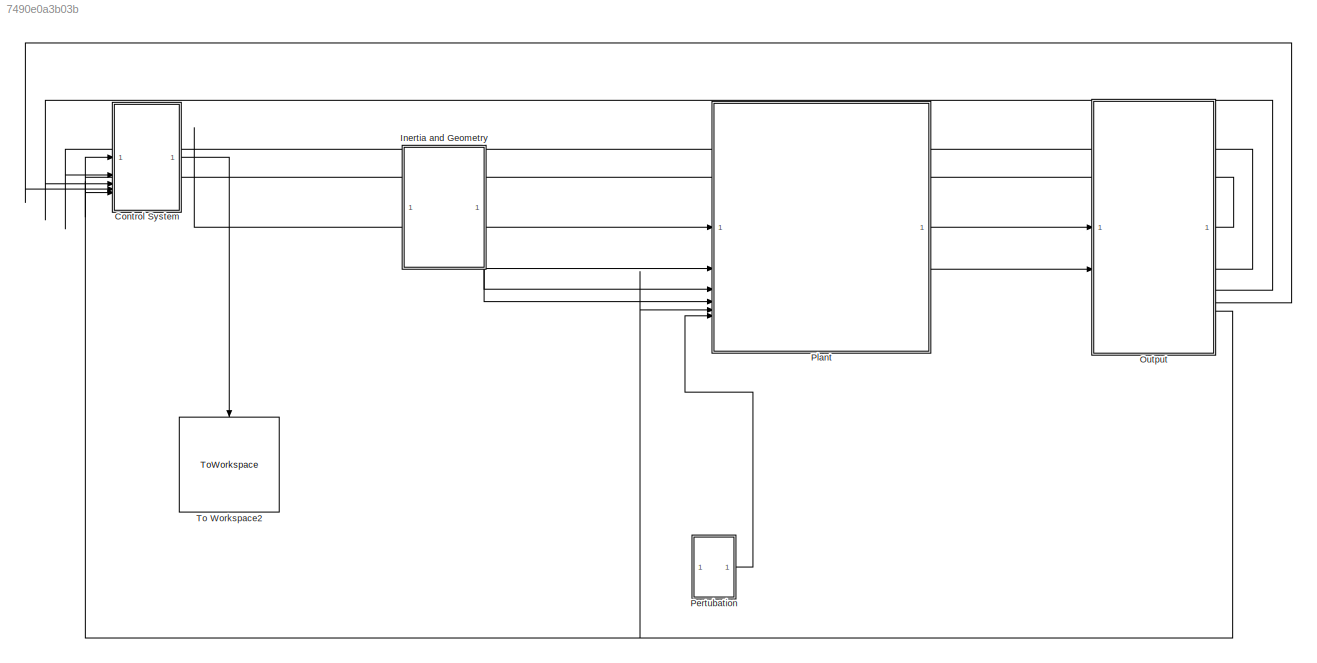
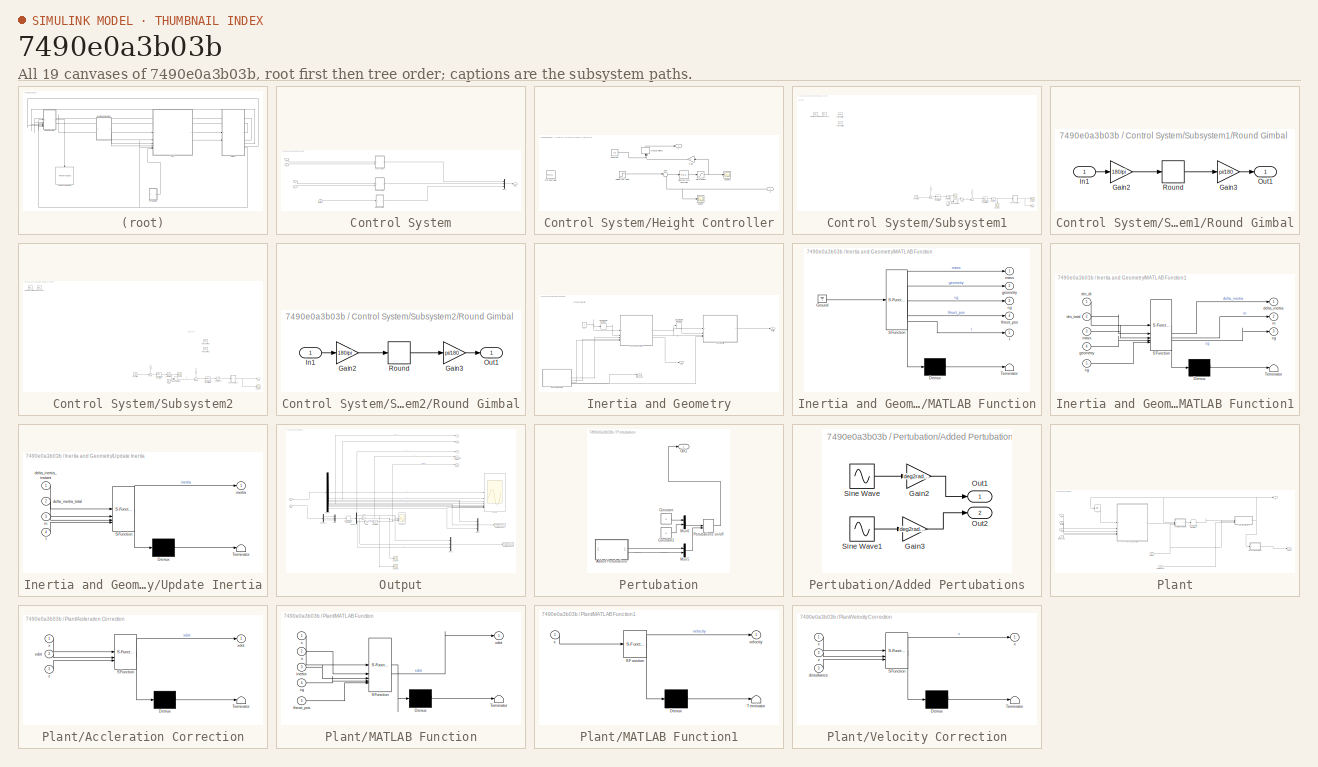
[diagram: thumbnail index - all 19 canvases of the model, root first then tree order]
MODEL slx_7490e0a3b03b
KIND model
CONFIG AbsTol = auto
CONFIG EnableMultiTasking = off
CONFIG FixedStep = auto
CONFIG MaxStep = auto
CONFIG MinStep = auto
CONFIG RelTol = 1e-3
CONFIG SampleTimeConstraint = Unconstrained
CONFIG SolverName = VariableStepAuto
CONFIG StartTime = 0.0
CONFIG StopTime = 300
BLOCK [SubSystem] Control System
BLOCK [Inport] Control System/Height
  NameLocation = top
  Port = 5
BLOCK [SubSystem] Control System/Height Controller
BLOCK [Constant] Control System/Height Controller/Constant
  Value = 110
BLOCK [Reference] Control System/Height Controller/Discrete PID Controller  REF=slpidlib/PID Controller
  LibrarySourceBlock = simulink/Discrete/Discrete PID Controller
  SourceBlock = slpidlib/PID Controller
  SourceType = PID 1dof
BLOCK [Gain] Control System/Height Controller/Gain
  NameLocation = top
BLOCK [ManualSwitch] Control System/Height Controller/Manual Switch
  CurrentSetting = 0
  NameLocation = right
BLOCK [Reference] Control System/Height Controller/PID Controller  REF=slpidlib/PID Controller
  LibrarySourceBlock = simulink/Continuous/PID Controller
  SourceBlock = slpidlib/PID Controller
  SourceType = PID 1dof
BLOCK [Saturate] Control System/Height Controller/Saturation1
  LowerLimit = 0
  UpperLimit = 150
BLOCK [Scope] Control System/Height Controller/Scope
  Floating = off
  NumInputPorts = 1
  ScopeSpecificationString = Simulink.scopes.TimeScopeBlockCfg('CurrentConfiguration', extmgr.ConfigurationSet(extmgr.Configuration('Core','General UI',true),extmgr.Configuration('Core','Source UI',true),extmgr.Configuration('Sources','WiredSimulink',true,'DataLoggingVariableName','ScopeData1'),extmgr.Configuration('Visuals','Time Domain',true,'SerializedDisplays',{struct('MinYLimReal','-2.05408','MaxYLimReal','18.48673','YLa...<+1492ch>
BLOCK [Scope] Control System/Height Controller/Scope2
  Floating = off
  NumInputPorts = 1
  ScopeSpecificationString = Simulink.scopes.TimeScopeBlockCfg('CurrentConfiguration', extmgr.ConfigurationSet(extmgr.Configuration('Core','General UI',true),extmgr.Configuration('Core','Source UI',true),extmgr.Configuration('Sources','WiredSimulink',true,'DataLoggingVariableName','ScopeData1'),extmgr.Configuration('Visuals','Time Domain',true,'SerializedDisplays',{struct('MinYLimReal','-14.37257','MaxYLimReal','129.35311','Y...<+1537ch>
BLOCK [Sum] Control System/Height Controller/Sum
  Inputs = |+-
BLOCK [Outport] Control System/Height Controller/T
BLOCK [Step] Control System/Height Controller/heighit set point
  After = 20
  SampleTime = 0
BLOCK [Inport] Control System/Height Controller/z
BLOCK [Mux] Control System/Mux1
  DisplayOption = bar
  Inputs = 3
BLOCK [Outport] Control System/Out1
BLOCK [SubSystem] Control System/Subsystem1
BLOCK [Outport] Control System/Subsystem1/Alpha
BLOCK [Reference] Control System/Subsystem1/Discrete PID Controller  REF=slpidlib/PID Controller
  LibrarySourceBlock = simulink/Discrete/Discrete PID Controller
  SourceBlock = slpidlib/PID Controller
  SourceType = PID 1dof
BLOCK [Reference] Control System/Subsystem1/Discrete PID Controller1  REF=slpidlib/PID Controller
  LibrarySourceBlock = simulink/Discrete/Discrete PID Controller
  SourceBlock = slpidlib/PID Controller
  SourceType = PID 1dof
BLOCK [Gain] Control System/Subsystem1/Gain
BLOCK [ManualSwitch] Control System/Subsystem1/Manual Switch
BLOCK [Reference] Control System/Subsystem1/PID Controller  REF=slpidlib/PID Controller
  LibrarySourceBlock = simulink/Continuous/PID Controller
  SourceBlock = slpidlib/PID Controller
  SourceType = PID 1dof
BLOCK [Reference] Control System/Subsystem1/PID Controller2  REF=slpidlib/PID Controller
  LibrarySourceBlock = simulink/Continuous/PID Controller
  SourceBlock = slpidlib/PID Controller
  SourceType = PID 1dof
BLOCK [Reference] Control System/Subsystem1/PID Pitch Controller  REF=slpidlib/PID Controller
  LibrarySourceBlock = simulink/Continuous/PID Controller
  SourceBlock = slpidlib/PID Controller
  SourceType = PID 1dof
BLOCK [Reference] Control System/Subsystem1/PID2 Backup 2  REF=slpidlib/PID Controller
  LibrarySourceBlock = simulink/Continuous/PID Controller
  SourceBlock = slpidlib/PID Controller
  SourceType = PID 1dof
BLOCK [Step] Control System/Subsystem1/Pitch
  After = 0.1745
  SampleTime = 0
BLOCK [SubSystem] Control System/Subsystem1/Round Gimbal
  NameLocation = top
BLOCK [Gain] Control System/Subsystem1/Round Gimbal/Gain2
  Gain = 180/pi
  NameLocation = top
BLOCK [Gain] Control System/Subsystem1/Round Gimbal/Gain3
  Gain = pi/180
  NameLocation = top
BLOCK [Inport] Control System/Subsystem1/Round Gimbal/In1
BLOCK [Outport] Control System/Subsystem1/Round Gimbal/Out1
BLOCK [Rounding] Control System/Subsystem1/Round Gimbal/Round
  NameLocation = top
  Operator = round
BLOCK [Saturate] Control System/Subsystem1/Saturation
  LowerLimit = -pi/6
  UpperLimit = pi/6
BLOCK [Saturate] Control System/Subsystem1/Saturation2
  LowerLimit = -pi
  UpperLimit = pi
BLOCK [Scope] Control System/Subsystem1/Scope
  Floating = off
  NumInputPorts = 1
  ScopeSpecificationString = Simulink.scopes.TimeScopeBlockCfg('CurrentConfiguration', extmgr.ConfigurationSet(extmgr.Configuration('Core','General UI',true),extmgr.Configuration('Core','Source UI',true),extmgr.Configuration('Sources','WiredSimulink',true,'DataLoggingVariableName','ScopeData1'),extmgr.Configuration('Visuals','Time Domain',true,'SerializedDisplays',{struct('MinYLimReal','-0.59015','MaxYLimReal','0.0754','YLabe...<+1435ch>
BLOCK [Scope] Control System/Subsystem1/Scope1
  Floating = off
  NameLocation = left
  NumInputPorts = 1
  ScopeSpecificationString = Simulink.scopes.TimeScopeBlockCfg('CurrentConfiguration', extmgr.ConfigurationSet(extmgr.Configuration('Core','General UI',true),extmgr.Configuration('Core','Source UI',true),extmgr.Configuration('Sources','WiredSimulink',true,'DataLoggingVariableName','ScopeData1'),extmgr.Configuration('Visuals','Time Domain',true,'SerializedDisplays',{struct('MinYLimReal','-0.04659','MaxYLimReal','0.18049','YLab...<+1409ch>
BLOCK [Scope] Control System/Subsystem1/Scope7
  Floating = off
  NumInputPorts = 1
  ScopeSpecificationString = Simulink.scopes.TimeScopeBlockCfg('CurrentConfiguration', extmgr.ConfigurationSet(extmgr.Configuration('Core','General UI',true),extmgr.Configuration('Core','Source UI',true),extmgr.Configuration('Sources','WiredSimulink',true,'DataLoggingVariableName','ScopeData1'),extmgr.Configuration('Visuals','Time Domain',true,'SerializedDisplays',{struct('MinYLimReal','-0.04642','MaxYLimReal','0.18027','YLab...<+1538ch>
BLOCK [Sum] Control System/Subsystem1/Sum1
  Inputs = -+|
BLOCK [Sum] Control System/Subsystem1/Sum2
  Inputs = -+|
BLOCK [Inport] Control System/Subsystem1/x
  NameLocation = left
  Port = 2
BLOCK [Step] Control System/Subsystem1/x position
  After = 0
  SampleTime = 0
BLOCK [Inport] Control System/Subsystem1/Θ
  NameLocation = left
BLOCK [SubSystem] Control System/Subsystem2
BLOCK [Outport] Control System/Subsystem2/Beta
BLOCK [Reference] Control System/Subsystem2/Discrete PID Controller  REF=slpidlib/PID Controller
  LibrarySourceBlock = simulink/Discrete/Discrete PID Controller
  SourceBlock = slpidlib/PID Controller
  SourceType = PID 1dof
BLOCK [Reference] Control System/Subsystem2/Discrete PID Controller1  REF=slpidlib/PID Controller
  LibrarySourceBlock = hdlsllib/Discrete/Discrete PID Controller
  SourceBlock = slpidlib/PID Controller
  SourceType = PID 1dof
BLOCK [ManualSwitch] Control System/Subsystem2/Manual Switch
BLOCK [Reference] Control System/Subsystem2/PID Controller1  REF=slpidlib/PID Controller
  LibrarySourceBlock = simulink/Continuous/PID Controller
  SourceBlock = slpidlib/PID Controller
  SourceType = PID 1dof
BLOCK [Reference] Control System/Subsystem2/PID Controller2  REF=slpidlib/PID Controller
  LibrarySourceBlock = simulink/Continuous/PID Controller
  SourceBlock = slpidlib/PID Controller
  SourceType = PID 1dof
BLOCK [Reference] Control System/Subsystem2/PID Pitch Controller  REF=slpidlib/PID Controller
  LibrarySourceBlock = simulink/Continuous/PID Controller
  SourceBlock = slpidlib/PID Controller
  SourceType = PID 1dof
BLOCK [Reference] Control System/Subsystem2/PID2 Backup 2  REF=slpidlib/PID Controller
  LibrarySourceBlock = simulink/Continuous/PID Controller
  SourceBlock = slpidlib/PID Controller
  SourceType = PID 1dof
BLOCK [SubSystem] Control System/Subsystem2/Round Gimbal
  NameLocation = top
BLOCK [Gain] Control System/Subsystem2/Round Gimbal/Gain2
  Gain = 180/pi
  NameLocation = top
BLOCK [Gain] Control System/Subsystem2/Round Gimbal/Gain3
  Gain = pi/180
  NameLocation = top
BLOCK [Inport] Control System/Subsystem2/Round Gimbal/In1
BLOCK [Outport] Control System/Subsystem2/Round Gimbal/Out1
BLOCK [Rounding] Control System/Subsystem2/Round Gimbal/Round
  NameLocation = top
  Operator = round
BLOCK [Saturate] Control System/Subsystem2/Saturation
  LowerLimit = -pi/6
  UpperLimit = pi/6
BLOCK [Saturate] Control System/Subsystem2/Saturation2
  LowerLimit = -pi
  UpperLimit = pi
BLOCK [Scope] Control System/Subsystem2/Scope
  Floating = off
  NumInputPorts = 1
  ScopeSpecificationString = Simulink.scopes.TimeScopeBlockCfg('CurrentConfiguration', extmgr.ConfigurationSet(extmgr.Configuration('Core','General UI',true),extmgr.Configuration('Core','Source UI',true),extmgr.Configuration('Sources','WiredSimulink',true,'DataLoggingVariableName','ScopeData1'),extmgr.Configuration('Visuals','Time Domain',true,'SerializedDisplays',{struct('MinYLimReal','-0.58906','MaxYLimReal','0.06556','YLab...<+1411ch>
BLOCK [Scope] Control System/Subsystem2/Scope7
  Floating = off
  NumInputPorts = 1
  ScopeSpecificationString = Simulink.scopes.TimeScopeBlockCfg('CurrentConfiguration', extmgr.ConfigurationSet(extmgr.Configuration('Core','General UI',true),extmgr.Configuration('Core','Source UI',true),extmgr.Configuration('Sources','WiredSimulink',true,'DataLoggingVariableName','ScopeData1'),extmgr.Configuration('Visuals','Time Domain',true,'SerializedDisplays',{struct('MinYLimReal','-0.06802','MaxYLimReal','0.22049','YLab...<+1538ch>
BLOCK [Sum] Control System/Subsystem2/Sum1
  Inputs = -+|
BLOCK [Sum] Control System/Subsystem2/Sum2
  Inputs = -+|
BLOCK [Step] Control System/Subsystem2/Yaw
  After = 0.1745
  SampleTime = 0
BLOCK [Inport] Control System/Subsystem2/y
  NameLocation = left
  Port = 2
BLOCK [Step] Control System/Subsystem2/y position
  After = 0
  SampleTime = 0
BLOCK [Inport] Control System/Subsystem2/Φ
  NameLocation = left
BLOCK [Inport] Control System/x
  Port = 3
BLOCK [Inport] Control System/y
  Port = 4
BLOCK [Inport] Control System/Θ
  Port = 2
BLOCK [Inport] Control System/Φ
BLOCK [SubSystem] Inertia and Geometry
BLOCK [DiscreteIntegrator] Inertia and Geometry/Discrete-Time Integrator
  ICPrevOutput = DiscIntNeverNeededParam
  ICPrevScaledInput = DiscIntNeverNeededParam
  InitialConditionSetting = Auto
  SampleTime = -1
BLOCK [DiscreteIntegrator] Inertia and Geometry/Discrete-Time Integrator2
  ICPrevOutput = DiscIntNeverNeededParam
  ICPrevScaledInput = DiscIntNeverNeededParam
  InitialConditionSetting = Auto
  SampleTime = -1
BLOCK [SubSystem] Inertia and Geometry/MATLAB Function
  ErrorFcn = Stateflow.Translate.translate
  PermitHierarchicalResolution = ExplicitOnly
  SFBlockType = MATLAB Function
  TreatAsAtomicUnit = on
BLOCK [Demux] Inertia and Geometry/MATLAB Function/ Demux 
  Outputs = 1
BLOCK [Ground] Inertia and Geometry/MATLAB Function/ Ground 
BLOCK [S-Function] Inertia and Geometry/MATLAB Function/ SFunction 
  EnableBusSupport = on
  FunctionName = sf_sfun
  PortCounts = [1 6]
  SFcnIsStateOwnerBlock = off
  SFunctionDeploymentMode = off
  Tag = Stateflow S-Function 7
BLOCK [Terminator] Inertia and Geometry/MATLAB Function/ Terminator 
BLOCK [Outport] Inertia and Geometry/MATLAB Function/I
  Port = 5
BLOCK [Outport] Inertia and Geometry/MATLAB Function/cg
  Port = 3
BLOCK [Outport] Inertia and Geometry/MATLAB Function/geometry
  Port = 2
BLOCK [Outport] Inertia and Geometry/MATLAB Function/mass
BLOCK [Outport] Inertia and Geometry/MATLAB Function/thrust_pos
  Port = 4
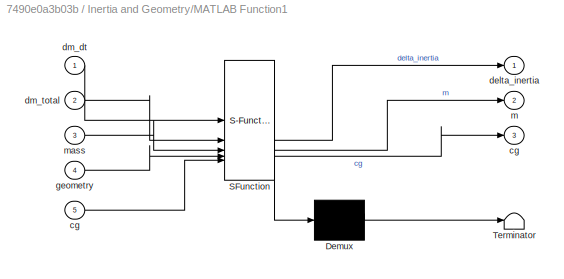
BLOCK [SubSystem] Inertia and Geometry/MATLAB Function1
  ErrorFcn = Stateflow.Translate.translate
  PermitHierarchicalResolution = ExplicitOnly
  SFBlockType = MATLAB Function
  TreatAsAtomicUnit = on
BLOCK [Demux] Inertia and Geometry/MATLAB Function1/ Demux 
  Outputs = 1
BLOCK [S-Function] Inertia and Geometry/MATLAB Function1/ SFunction 
  EnableBusSupport = on
  FunctionName = sf_sfun
  PortCounts = [5 4]
  SFcnIsStateOwnerBlock = off
  SFunctionDeploymentMode = off
  Tag = Stateflow S-Function 3
BLOCK [Terminator] Inertia and Geometry/MATLAB Function1/ Terminator 
BLOCK [Outport] Inertia and Geometry/MATLAB Function1/cg
  Port = 3
BLOCK [Inport] Inertia and Geometry/MATLAB Function1/cg 
  Port = 5
BLOCK [Outport] Inertia and Geometry/MATLAB Function1/delta_inertia
BLOCK [Inport] Inertia and Geometry/MATLAB Function1/dm_dt
BLOCK [Inport] Inertia and Geometry/MATLAB Function1/dm_total
  Port = 2
BLOCK [Inport] Inertia and Geometry/MATLAB Function1/geometry
  Port = 4
BLOCK [Outport] Inertia and Geometry/MATLAB Function1/m
  Port = 2
BLOCK [Inport] Inertia and Geometry/MATLAB Function1/mass
  Port = 3
BLOCK [SubSystem] Inertia and Geometry/Update Inertia
  ErrorFcn = Stateflow.Translate.translate
  PermitHierarchicalResolution = ExplicitOnly
  SFBlockType = MATLAB Function
  TreatAsAtomicUnit = on
BLOCK [Demux] Inertia and Geometry/Update Inertia/ Demux 
  Outputs = 1
BLOCK [S-Function] Inertia and Geometry/Update Inertia/ SFunction 
  EnableBusSupport = on
  FunctionName = sf_sfun
  PortCounts = [4 2]
  SFcnIsStateOwnerBlock = off
  SFunctionDeploymentMode = off
  Tag = Stateflow S-Function 5
BLOCK [Terminator] Inertia and Geometry/Update Inertia/ Terminator 
BLOCK [Inport] Inertia and Geometry/Update Inertia/I
  Port = 4
BLOCK [Inport] Inertia and Geometry/Update Inertia/delta_inertia_instant
BLOCK [Inport] Inertia and Geometry/Update Inertia/delta_inertia_total
  Port = 2
BLOCK [Outport] Inertia and Geometry/Update Inertia/inertia
BLOCK [Inport] Inertia and Geometry/Update Inertia/m
  Port = 3
BLOCK [Outport] Inertia and Geometry/cg
  Port = 2
BLOCK [Constant] Inertia and Geometry/dm
  Value = 0
BLOCK [Outport] Inertia and Geometry/inertia
BLOCK [Outport] Inertia and Geometry/thrust_pos
  Port = 3
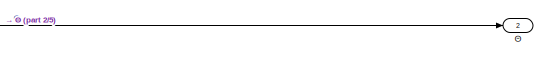
[diagram: Output - part 1/5, top center region]
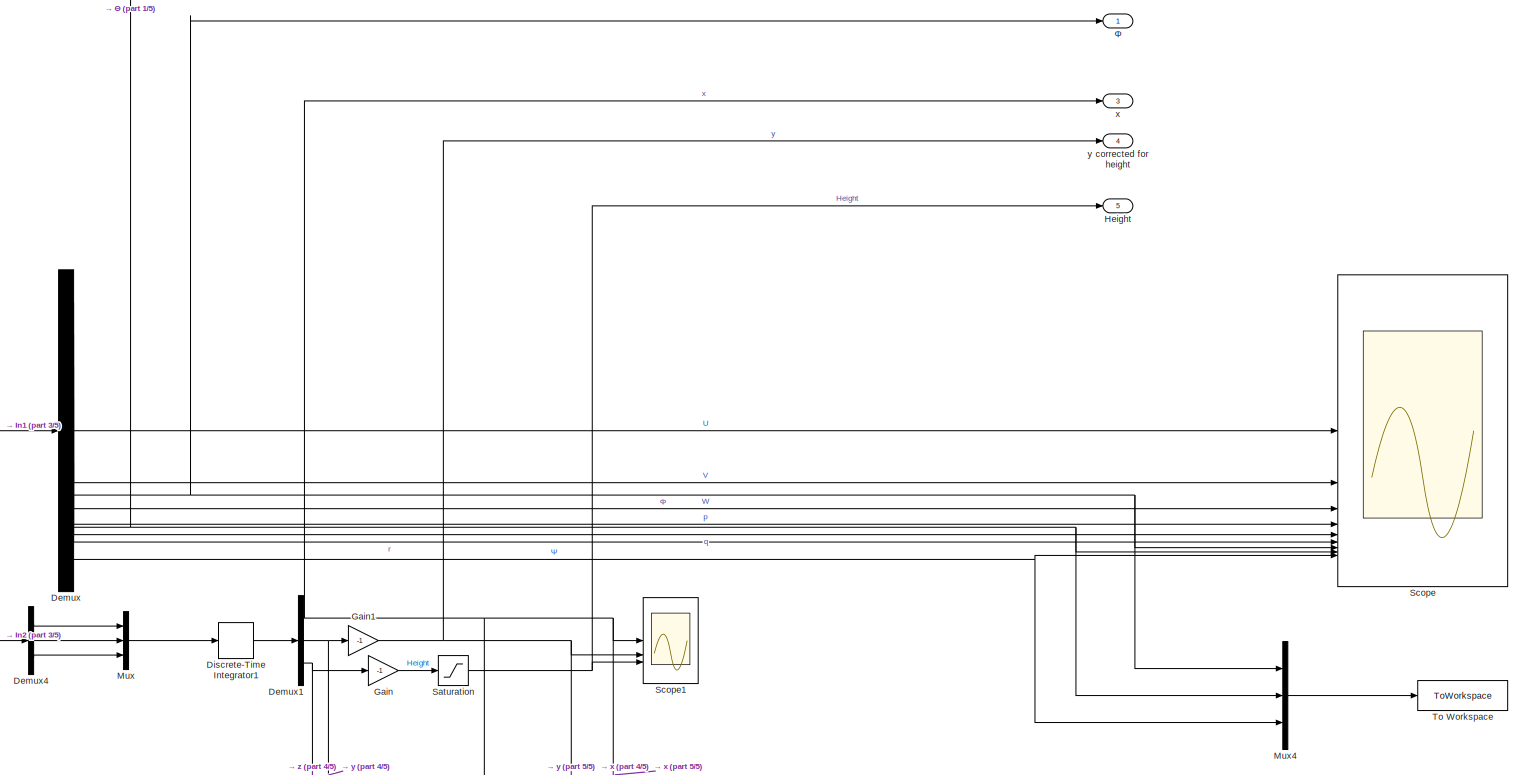
[diagram: Output - part 2/5, full width, middle band]
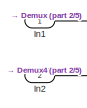
[diagram: Output - part 3/5, middle left region]
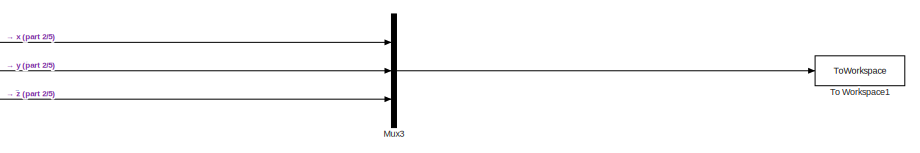
[diagram: Output - part 4/5, bottom right region]
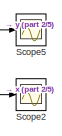
[diagram: Output - part 5/5, bottom center region]
BLOCK [SubSystem] Output
BLOCK [Demux] Output/Demux
  Outputs = 9
BLOCK [Demux] Output/Demux1
  Outputs = 3
BLOCK [Demux] Output/Demux4
  Outputs = 3
BLOCK [DiscreteIntegrator] Output/Discrete-Time Integrator1
  ICPrevOutput = DiscIntNeverNeededParam
  ICPrevScaledInput = DiscIntNeverNeededParam
  InitialConditionSetting = Auto
  SampleTime = -1
BLOCK [Gain] Output/Gain
  Gain = -1
BLOCK [Gain] Output/Gain1
  Gain = -1
BLOCK [Outport] Output/Height
  NameLocation = top
  Port = 5
BLOCK [Inport] Output/In1
BLOCK [Inport] Output/In2
  Port = 2
BLOCK [Mux] Output/Mux
  DisplayOption = bar
  Inputs = 3
BLOCK [Mux] Output/Mux3
  DisplayOption = bar
  Inputs = 3
BLOCK [Mux] Output/Mux4
  DisplayOption = bar
  Inputs = 3
BLOCK [Saturate] Output/Saturation
  LowerLimit = 0
  UpperLimit = 10000
BLOCK [Scope] Output/Scope
  Floating = off
  NumInputPorts = 9
  ScopeSpecificationString = Simulink.scopes.TimeScopeBlockCfg('CurrentConfiguration', extmgr.ConfigurationSet(extmgr.Configuration('Core','General UI',true),extmgr.Configuration('Core','Source UI',true),extmgr.Configuration('Sources','WiredSimulink',true),extmgr.Configuration('Visuals','Time Domain',true,'SerializedDisplays',{struct('MinYLimReal','-1.00000','MaxYLimReal','1.00000','YLabelReal','','MinYLimMag','0.00000','MaxY...<+7774ch>
BLOCK [Scope] Output/Scope1
  Floating = off
  NumInputPorts = 3
  ScopeSpecificationString = Simulink.scopes.TimeScopeBlockCfg('CurrentConfiguration', extmgr.ConfigurationSet(extmgr.Configuration('Core','General UI',true),extmgr.Configuration('Core','Source UI',true),extmgr.Configuration('Sources','WiredSimulink',true,'DataLoggingVariableName','ScopeData1'),extmgr.Configuration('Visuals','Time Domain',true,'SerializedDisplays',{struct('MinYLimReal','-2.05408','MaxYLimReal','18.48673','YLa...<+1551ch>
BLOCK [Scope] Output/Scope2
  Floating = off
  NumInputPorts = 1
  ScopeSpecificationString = Simulink.scopes.TimeScopeBlockCfg('CurrentConfiguration', extmgr.ConfigurationSet(extmgr.Configuration('Core','General UI',true),extmgr.Configuration('Core','Source UI',true),extmgr.Configuration('Sources','WiredSimulink',true,'DataLoggingVariableName','ScopeData2'),extmgr.Configuration('Visuals','Time Domain',true,'SerializedDisplays',{struct('MinYLimReal','-16.07928','MaxYLimReal','11.49116','YL...<+1470ch>
BLOCK [Scope] Output/Scope5
  Floating = off
  NumInputPorts = 1
  ScopeSpecificationString = Simulink.scopes.TimeScopeBlockCfg('CurrentConfiguration', extmgr.ConfigurationSet(extmgr.Configuration('Core','General UI',true),extmgr.Configuration('Core','Source UI',true),extmgr.Configuration('Sources','WiredSimulink',true,'DataLoggingVariableName','ScopeData3'),extmgr.Configuration('Visuals','Time Domain',true,'SerializedDisplays',{struct('MinYLimReal','-17.31939','MaxYLimReal','22.2376','YLa...<+1401ch>
BLOCK [ToWorkspace] Output/To Workspace
  FixptAsFi = on
  MaxDataPoints = inf
  SampleTime = -1
  SaveFormat = Timeseries
  VariableName = euler_angles
BLOCK [ToWorkspace] Output/To Workspace1
  FixptAsFi = on
  MaxDataPoints = inf
  SampleTime = -1
  SaveFormat = Timeseries
  VariableName = position
BLOCK [Outport] Output/x
  Port = 3
BLOCK [Outport] Output/y corrected for height
  Port = 4
BLOCK [Outport] Output/Θ
  Port = 2
BLOCK [Outport] Output/Φ
BLOCK [SubSystem] Pertubation
BLOCK [SubSystem] Pertubation/Added Pertubations
BLOCK [Gain] Pertubation/Added Pertubations/Gain2
  Gain = deg2rad(5)
BLOCK [Gain] Pertubation/Added Pertubations/Gain3
  Gain = deg2rad(5)
BLOCK [Outport] Pertubation/Added Pertubations/Out1
BLOCK [Outport] Pertubation/Added Pertubations/Out2
  Port = 2
BLOCK [Sin] Pertubation/Added Pertubations/Sine Wave
  Frequency = 0.5
  SampleTime = 0
BLOCK [Sin] Pertubation/Added Pertubations/Sine Wave1
  Frequency = 0.5
  SampleTime = 0
BLOCK [Constant] Pertubation/Constant
  Value = 0
BLOCK [Constant] Pertubation/Constant1
  Value = 0
BLOCK [Mux] Pertubation/Mux5
  DisplayOption = bar
  Inputs = 2
BLOCK [Mux] Pertubation/Mux6
  DisplayOption = bar
  Inputs = 2
BLOCK [Outport] Pertubation/Out1
BLOCK [ManualSwitch] Pertubation/Pertubations on//off
  NameLocation = right
BLOCK [SubSystem] Plant
BLOCK [SubSystem] Plant/Accleration Correction
  ErrorFcn = Stateflow.Translate.translate
  PermitHierarchicalResolution = ExplicitOnly
  SFBlockType = MATLAB Function
  TreatAsAtomicUnit = on
BLOCK [Demux] Plant/Accleration Correction/ Demux 
  Outputs = 1
BLOCK [S-Function] Plant/Accleration Correction/ SFunction 
  EnableBusSupport = on
  FunctionName = sf_sfun
  PortCounts = [3 2]
  SFcnIsStateOwnerBlock = off
  SFunctionDeploymentMode = off
  Tag = Stateflow S-Function 1
BLOCK [Terminator] Plant/Accleration Correction/ Terminator 
BLOCK [Inport] Plant/Accleration Correction/x
BLOCK [Outport] Plant/Accleration Correction/xdot
BLOCK [Inport] Plant/Accleration Correction/xdot 
  Port = 2
BLOCK [Inport] Plant/Accleration Correction/z
  Port = 3
BLOCK [DiscreteIntegrator] Plant/Discrete-Time Integrator
  ICPrevOutput = DiscIntNeverNeededParam
  ICPrevScaledInput = DiscIntNeverNeededParam
  InitialConditionSetting = Auto
  SampleTime = -1
BLOCK [Inport] Plant/Height
  Port = 5
BLOCK [InitialCondition] Plant/IC
  Value = [0,0,0,0,0,0,0,0,0]
BLOCK [SubSystem] Plant/MATLAB Function
  ErrorFcn = Stateflow.Translate.translate
  PermitHierarchicalResolution = ExplicitOnly
  SFBlockType = MATLAB Function
  TreatAsAtomicUnit = on
BLOCK [Demux] Plant/MATLAB Function/ Demux 
  Outputs = 1
BLOCK [S-Function] Plant/MATLAB Function/ SFunction 
  EnableBusSupport = on
  FunctionName = sf_sfun
  PortCounts = [5 2]
  SFcnIsStateOwnerBlock = off
  SFunctionDeploymentMode = off
  Tag = Stateflow S-Function 2
BLOCK [Terminator] Plant/MATLAB Function/ Terminator 
BLOCK [Inport] Plant/MATLAB Function/cg
  Port = 4
BLOCK [Inport] Plant/MATLAB Function/inertia
  Port = 3
BLOCK [Inport] Plant/MATLAB Function/thrust_pos
  Port = 5
BLOCK [Inport] Plant/MATLAB Function/u
  Port = 2
BLOCK [Inport] Plant/MATLAB Function/x
BLOCK [Outport] Plant/MATLAB Function/xdot
BLOCK [SubSystem] Plant/MATLAB Function1
  ErrorFcn = Stateflow.Translate.translate
  PermitHierarchicalResolution = ExplicitOnly
  SFBlockType = MATLAB Function
  TreatAsAtomicUnit = on
BLOCK [Demux] Plant/MATLAB Function1/ Demux 
  Outputs = 1
BLOCK [S-Function] Plant/MATLAB Function1/ SFunction 
  EnableBusSupport = on
  FunctionName = sf_sfun
  PortCounts = [1 2]
  SFcnIsStateOwnerBlock = off
  SFunctionDeploymentMode = off
  Tag = Stateflow S-Function 6
BLOCK [Terminator] Plant/MATLAB Function1/ Terminator 
BLOCK [Outport] Plant/MATLAB Function1/velocity
BLOCK [Inport] Plant/MATLAB Function1/x
BLOCK [SubSystem] Plant/Velocity Correction
  ErrorFcn = Stateflow.Translate.translate
  PermitHierarchicalResolution = ExplicitOnly
  SFBlockType = MATLAB Function
  TreatAsAtomicUnit = on
BLOCK [Demux] Plant/Velocity Correction/ Demux 
  Outputs = 1
BLOCK [S-Function] Plant/Velocity Correction/ SFunction 
  EnableBusSupport = on
  FunctionName = sf_sfun
  PortCounts = [3 2]
  SFcnIsStateOwnerBlock = off
  SFunctionDeploymentMode = off
  Tag = Stateflow S-Function 4
BLOCK [Terminator] Plant/Velocity Correction/ Terminator 
BLOCK [Inport] Plant/Velocity Correction/disturbance
  Port = 3
BLOCK [Outport] Plant/Velocity Correction/x
BLOCK [Inport] Plant/Velocity Correction/x 
BLOCK [Inport] Plant/Velocity Correction/z
  Port = 2
BLOCK [Inport] Plant/cg
  Port = 3
BLOCK [Inport] Plant/disturbance
  Port = 6
BLOCK [Inport] Plant/inertia
  Port = 2
BLOCK [Inport] Plant/thrust_pos
  Port = 4
BLOCK [Inport] Plant/u
BLOCK [Outport] Plant/velocity
  Port = 2
BLOCK [Outport] Plant/x
BLOCK [ToWorkspace] To Workspace2
  FixptAsFi = on
  MaxDataPoints = inf
  NameLocation = left
  SampleTime = -1
  SaveFormat = Timeseries
  VariableName = thrust
ANNOTATION Control System/Subsystem1: Bakups
ANNOTATION Control System/Subsystem2: Backups
ANNOTATION Inertia and Geometry: Compute delta inertia
LINE Control System/Height Controller/Constant:1 -> Control System/Height Controller/Manual Switch:1
LINE Control System/Height Controller/Discrete PID Controller:1 -> Control System/Height Controller/Saturation1:1
LINE Control System/Height Controller/Gain:1 -> Control System/Height Controller/Manual Switch:2
LINE Control System/Height Controller/Manual Switch:1 -> Control System/Height Controller/T:1
NET Control System/Height Controller/Saturation1:1 -> Control System/Height Controller/Gain:1, Control System/Height Controller/Scope2:1
LINE Control System/Height Controller/Sum:1 -> Control System/Height Controller/Discrete PID Controller:1
LINE Control System/Height Controller/heighit set point:1 -> Control System/Height Controller/Sum:1
NET Control System/Height Controller/z:1 -> Control System/Height Controller/Scope:1, Control System/Height Controller/Sum:2
LINE Control System/Height Controller:1 -> Control System/Mux1:3
LINE Control System/Height:1 -> Control System/Height Controller:1
LINE Control System/Mux1:1 -> Control System/Out1:1
LINE Control System/Subsystem1/Discrete PID Controller1:1 -> Control System/Subsystem1/Saturation2:1
LINE Control System/Subsystem1/Discrete PID Controller:1 -> Control System/Subsystem1/Saturation:1
LINE Control System/Subsystem1/Gain:1 -> Control System/Subsystem1/Sum2:2
LINE Control System/Subsystem1/Manual Switch:1 -> Control System/Subsystem1/Gain:1
LINE Control System/Subsystem1/Pitch:1 -> Control System/Subsystem1/Manual Switch:2
LINE Control System/Subsystem1/Round Gimbal/Gain2:1 -> Control System/Subsystem1/Round Gimbal/Round:1
LINE Control System/Subsystem1/Round Gimbal/Gain3:1 -> Control System/Subsystem1/Round Gimbal/Out1:1
LINE Control System/Subsystem1/Round Gimbal/In1:1 -> Control System/Subsystem1/Round Gimbal/Gain2:1
LINE Control System/Subsystem1/Round Gimbal/Round:1 -> Control System/Subsystem1/Round Gimbal/Gain3:1
NET Control System/Subsystem1/Round Gimbal:1 -> Control System/Subsystem1/Alpha:1, Control System/Subsystem1/Scope7:1
NET Control System/Subsystem1/Saturation2:1 -> Control System/Subsystem1/Round Gimbal:1, Control System/Subsystem1/Scope1:1
NET Control System/Subsystem1/Saturation:1 -> Control System/Subsystem1/Manual Switch:1, Control System/Subsystem1/Scope:1
LINE Control System/Subsystem1/Sum1:1 -> Control System/Subsystem1/Discrete PID Controller:1
LINE Control System/Subsystem1/Sum2:1 -> Control System/Subsystem1/Discrete PID Controller1:1
LINE Control System/Subsystem1/x position:1 -> Control System/Subsystem1/Sum1:2
LINE Control System/Subsystem1/x:1 -> Control System/Subsystem1/Sum1:1
LINE Control System/Subsystem1/Θ:1 -> Control System/Subsystem1/Sum2:1
LINE Control System/Subsystem1:1 -> Control System/Mux1:1
LINE Control System/Subsystem2/Discrete PID Controller1:1 -> Control System/Subsystem2/Saturation2:1
LINE Control System/Subsystem2/Discrete PID Controller:1 -> Control System/Subsystem2/Saturation:1
LINE Control System/Subsystem2/Manual Switch:1 -> Control System/Subsystem2/Sum2:2
LINE Control System/Subsystem2/Round Gimbal/Gain2:1 -> Control System/Subsystem2/Round Gimbal/Round:1
LINE Control System/Subsystem2/Round Gimbal/Gain3:1 -> Control System/Subsystem2/Round Gimbal/Out1:1
LINE Control System/Subsystem2/Round Gimbal/In1:1 -> Control System/Subsystem2/Round Gimbal/Gain2:1
LINE Control System/Subsystem2/Round Gimbal/Round:1 -> Control System/Subsystem2/Round Gimbal/Gain3:1
NET Control System/Subsystem2/Round Gimbal:1 -> Control System/Subsystem2/Beta:1, Control System/Subsystem2/Scope7:1
LINE Control System/Subsystem2/Saturation2:1 -> Control System/Subsystem2/Round Gimbal:1
NET Control System/Subsystem2/Saturation:1 -> Control System/Subsystem2/Manual Switch:1, Control System/Subsystem2/Scope:1
LINE Control System/Subsystem2/Sum1:1 -> Control System/Subsystem2/Discrete PID Controller:1
LINE Control System/Subsystem2/Sum2:1 -> Control System/Subsystem2/Discrete PID Controller1:1
LINE Control System/Subsystem2/Yaw:1 -> Control System/Subsystem2/Manual Switch:2
LINE Control System/Subsystem2/y position:1 -> Control System/Subsystem2/Sum1:2
LINE Control System/Subsystem2/y:1 -> Control System/Subsystem2/Sum1:1
LINE Control System/Subsystem2/Φ:1 -> Control System/Subsystem2/Sum2:1
LINE Control System/Subsystem2:1 -> Control System/Mux1:2
LINE Control System/x:1 -> Control System/Subsystem1:2
LINE Control System/y:1 -> Control System/Subsystem2:2
LINE Control System/Θ:1 -> Control System/Subsystem1:1
LINE Control System/Φ:1 -> Control System/Subsystem2:1
NET Control System:1 -> Plant:1, To Workspace2:1
LINE Inertia and Geometry/Discrete-Time Integrator2:1 -> Inertia and Geometry/Update Inertia:2
LINE Inertia and Geometry/Discrete-Time Integrator:1 -> Inertia and Geometry/MATLAB Function1:2
NET Inertia and Geometry/MATLAB Function1:1 -> Inertia and Geometry/Discrete-Time Integrator2:1, Inertia and Geometry/Update Inertia:1
LINE Inertia and Geometry/MATLAB Function1:2 -> Inertia and Geometry/Update Inertia:3
LINE Inertia and Geometry/MATLAB Function1:3 -> Inertia and Geometry/cg:1
LINE Inertia and Geometry/MATLAB Function:1 -> Inertia and Geometry/MATLAB Function1:3
LINE Inertia and Geometry/MATLAB Function:2 -> Inertia and Geometry/MATLAB Function1:4
LINE Inertia and Geometry/MATLAB Function:3 -> Inertia and Geometry/MATLAB Function1:5
LINE Inertia and Geometry/MATLAB Function:4 -> Inertia and Geometry/thrust_pos:1
LINE Inertia and Geometry/MATLAB Function:5 -> Inertia and Geometry/Update Inertia:4
LINE Inertia and Geometry/Update Inertia:1 -> Inertia and Geometry/inertia:1
NET Inertia and Geometry/dm:1 -> Inertia and Geometry/Discrete-Time Integrator:1, Inertia and Geometry/MATLAB Function1:1
LINE Inertia and Geometry:1 -> Plant:2
LINE Inertia and Geometry:2 -> Plant:3
LINE Inertia and Geometry:3 -> Plant:4
NET Output/Demux1:1 -> Output/Mux3:1, Output/Scope1:1, Output/Scope2:1, Output/x:1
NET Output/Demux1:2 -> Output/Gain1:1, Output/Mux3:2
NET Output/Demux1:3 -> Output/Gain:1, Output/Mux3:3
LINE Output/Demux4:1 -> Output/Mux:1
LINE Output/Demux4:2 -> Output/Mux:2
LINE Output/Demux4:3 -> Output/Mux:3
LINE Output/Demux:1 -> Output/Scope:1
LINE Output/Demux:2 -> Output/Scope:2
LINE Output/Demux:3 -> Output/Scope:3
LINE Output/Demux:4 -> Output/Scope:4
LINE Output/Demux:5 -> Output/Scope:5
LINE Output/Demux:6 -> Output/Scope:6
NET Output/Demux:7 -> Output/Mux4:1, Output/Scope:7, Output/Φ:1
NET Output/Demux:8 -> Output/Mux4:2, Output/Scope:8, Output/Θ:1
NET Output/Demux:9 -> Output/Mux4:3, Output/Scope:9
LINE Output/Discrete-Time Integrator1:1 -> Output/Demux1:1
NET Output/Gain1:1 -> Output/Scope1:2, Output/Scope5:1, Output/y corrected for height:1
LINE Output/Gain:1 -> Output/Saturation:1
LINE Output/In1:1 -> Output/Demux:1
LINE Output/In2:1 -> Output/Demux4:1
LINE Output/Mux3:1 -> Output/To Workspace1:1
LINE Output/Mux4:1 -> Output/To Workspace:1
LINE Output/Mux:1 -> Output/Discrete-Time Integrator1:1
NET Output/Saturation:1 -> Output/Height:1, Output/Scope1:3
LINE Output:1 -> Control System:1
LINE Output:2 -> Control System:2
LINE Output:3 -> Control System:3
LINE Output:4 -> Control System:4
NET Output:5 -> Control System:5, Plant:5
LINE Pertubation/Added Pertubations/Gain2:1 -> Pertubation/Added Pertubations/Out1:1
LINE Pertubation/Added Pertubations/Gain3:1 -> Pertubation/Added Pertubations/Out2:1
LINE Pertubation/Added Pertubations/Sine Wave1:1 -> Pertubation/Added Pertubations/Gain3:1
LINE Pertubation/Added Pertubations/Sine Wave:1 -> Pertubation/Added Pertubations/Gain2:1
LINE Pertubation/Added Pertubations:1 -> Pertubation/Mux5:1
LINE Pertubation/Added Pertubations:2 -> Pertubation/Mux5:2
LINE Pertubation/Constant1:1 -> Pertubation/Mux6:2
LINE Pertubation/Constant:1 -> Pertubation/Mux6:1
LINE Pertubation/Mux5:1 -> Pertubation/Pertubations on//off:2
LINE Pertubation/Mux6:1 -> Pertubation/Pertubations on//off:1
LINE Pertubation/Pertubations on//off:1 -> Pertubation/Out1:1
LINE Pertubation:1 -> Plant:6
LINE Plant/Accleration Correction:1 -> Plant/Discrete-Time Integrator:1
LINE Plant/Discrete-Time Integrator:1 -> Plant/Velocity Correction:1
NET Plant/Height:1 -> Plant/Accleration Correction:3, Plant/Velocity Correction:2
LINE Plant/IC:1 -> Plant/MATLAB Function:1
LINE Plant/MATLAB Function1:1 -> Plant/velocity:1
LINE Plant/MATLAB Function:1 -> Plant/Accleration Correction:2
NET Plant/Velocity Correction:1 -> Plant/Accleration Correction:1, Plant/IC:1, Plant/MATLAB Function1:1, Plant/x:1
LINE Plant/cg:1 -> Plant/MATLAB Function:4
LINE Plant/disturbance:1 -> Plant/Velocity Correction:3
LINE Plant/inertia:1 -> Plant/MATLAB Function:3
LINE Plant/thrust_pos:1 -> Plant/MATLAB Function:5
LINE Plant/u:1 -> Plant/MATLAB Function:2
LINE Plant:1 -> Output:1
LINE Plant:2 -> Output:2
note: NET lines group one-source signal fan-out (src -> all destinations, sorted); 1:1 wires keep LINE
CHART Plant/Accleration Correction states=1 transitions=1
  STATE_LABEL 'eML_blk_kernel()'
  STATE_LABEL 'SCRIPT:\nfunction xdot = fcn(x,xdot, z)\n\nphi=x(7);\ntheta=x(8);\npsi=x(9);\nT_etob=[cos(theta)*cos(psi),cos(theta)*sin(psi),-sin(theta);\n    sin(theta)*sin(phi)*cos(phi)-sin(psi)*cos(phi),sin(psi)*sin(theta)*sin(phi)+cos(psi)*cos(phi), sin(phi)*cos(theta);\n    sin(theta)*cos(phi)*cos(psi)+sin(psi)*sin(phi), sin(phi)*sin(theta)*cos(phi)-cos(psi)*sin(theta), cos(phi)*cos(theta)];\nzddot=xdot(end);\n\nif z ...<+140ch>'
CHART Plant/MATLAB Function states=1 transitions=1
  STATE_LABEL 'eML_blk_kernel()'
  STATE_LABEL 'SCRIPT:\nfunction xdot   = fcn(x, u,inertia,cg, thrust_pos)\n%{\nTakes in thrust, angles of thrust, x and outputs xdot\nBody axis is defined as z being the in the direction of gravity when pitch\nis zero\nmass-kg\nI - moment of inertia - kg m^2\ncg - centre of gravity - m\nthrust position - m\n\nx: \nU - body axis x velocity - m/s\nV - body axis y velocity - m/s\nW - body axis z velocity - m/s\np - body axis rol...<+2166ch>'
CHART Inertia and Geometry/MATLAB Function1 states=1 transitions=1
  STATE_LABEL 'eML_blk_kernel()'
  STATE_LABEL 'SCRIPT:\nfunction  [delta_inertia,m,cg] = fcn(dm_dt,dm_total,mass,geometry,cg)\n\n\n\nrho=800;\nm_empty=mass(1);\nm_fuel=mass(2);\nR_tank=geometry(1);\nA_tank=pi*R_tank^2;\n\n\nC=0; %The constant from empty cg to the bottom of the fuel tank\nD=0; %cg_empty * m_empty,set to 0 if axis begins at empty cg\n\ndL_fuel=dm_total/rho*A_tank; \n\nL_fuel=geometry(2)-dL_fuel;\n\n\nm_fuel=m_fuel+dm_total;\nm=m_empty+m_fuel;\n\ncg_fu...<+760ch>'
CHART Plant/Velocity Correction states=1 transitions=1
  STATE_LABEL 'eML_blk_kernel()'
  STATE_LABEL 'SCRIPT:\nfunction x   = fcn(x, z,disturbance)\n\nphi=x(7);\ntheta=x(8);\npsi=x(9);\nT_etob=[cos(theta)*cos(psi),cos(theta)*sin(psi),-sin(theta);\n    sin(theta)*sin(phi)*cos(phi)-sin(psi)*cos(phi),sin(psi)*sin(theta)*sin(phi)+cos(psi)*cos(phi), sin(phi)*cos(theta);\n    sin(theta)*cos(phi)*cos(psi)+sin(psi)*sin(phi), sin(phi)*sin(theta)*cos(phi)-cos(psi)*sin(theta), cos(phi)*cos(theta)];\n\n\nvelocity=T_etob...<+271ch>'
CHART Inertia and Geometry/Update Inertia states=1 transitions=1
  STATE_LABEL 'eML_blk_kernel()'
  STATE_LABEL 'SCRIPT:\nfunction inertia  = fcn(delta_inertia_instant,delta_inertia_total,m,I)\n\n%%Mass and inertia\n\n\n\nIxx=I(1);\nIyy=I(2);\nIzz=I(3);\n\n\n%compute change in mass and inertia using parallel axis theorems\n\n\n\n%update Ixx, Iyy and Izz \nIxx=Ixx+delta_inertia_total(1);\nIyy=Iyy+delta_inertia_total(2);\nIzz=Izz+delta_inertia_total(3);\n\ninertia=[delta_inertia_instant,Ixx Iyy, Izz,m];\n\n\n\n'
CHART Plant/MATLAB Function1 states=1 transitions=1
  STATE_LABEL 'eML_blk_kernel()'
  STATE_LABEL 'SCRIPT:\nfunction velocity = fcn(x)\n\nphi=x(7);\ntheta=x(8);\npsi=x(9);\nT_etob=[cos(theta)*cos(psi),cos(theta)*sin(psi),-sin(theta);\n    sin(theta)*sin(phi)*cos(phi)-sin(psi)*cos(phi),sin(psi)*sin(theta)*sin(phi)+cos(psi)*cos(phi), sin(phi)*cos(theta);\n    sin(theta)*cos(phi)*cos(psi)+sin(psi)*sin(phi), sin(phi)*sin(theta)*cos(phi)-cos(psi)*sin(theta), cos(phi)*cos(theta)];\n\n\nvelocity=T_etob\\[x(1);x(2...<+9ch>'
CHART Inertia and Geometry/MATLAB Function states=1 transitions=1
  STATE_LABEL 'eML_blk_kernel()'
  STATE_LABEL "SCRIPT:\nfunction [mass, geometry,cg,thrust_pos,I] = fcn()\n\n\n\nm_fuel=0;\nm_empty=10.336;\n% R_tank=units(152.4/2,'mm','m');\n% L_fuel=units(489,'mm','m')\n\nR_tank=units(0,'mm','m');\nL_fuel=units(0,'mm','m');\n\nIxx=units(9.134e8,'g*mm^2','kg*m^2');\nIyy=units(9.312e8,'g*mm^2','kg*m^2');\nIzz=units(1.3e8,'g*mm^2','kg*m^2');\n\ncg=[0,0,units(0,'mm','m')];\nthrust_pos=[units(0,'mm','m'),units(0,'mm','m'),units(5...<+81ch>"
CHART  states=0 transitions=0
CHART  states=0 transitions=0
CHART  states=0 transitions=0
CHART  states=0 transitions=0
CHART  states=0 transitions=0
CHART  states=0 transitions=0
CHART  states=0 transitions=0
